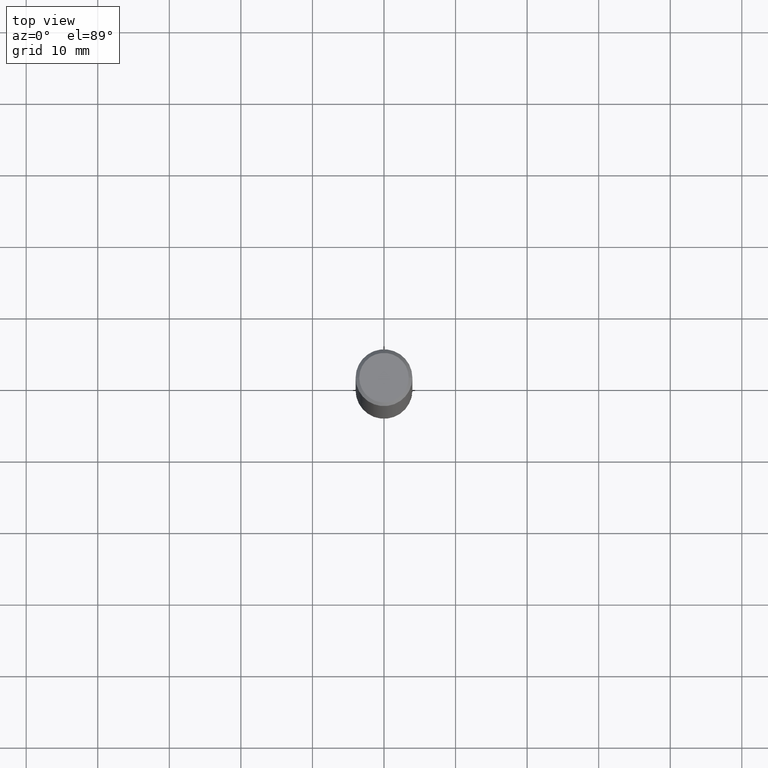
[diagram: clean part render]
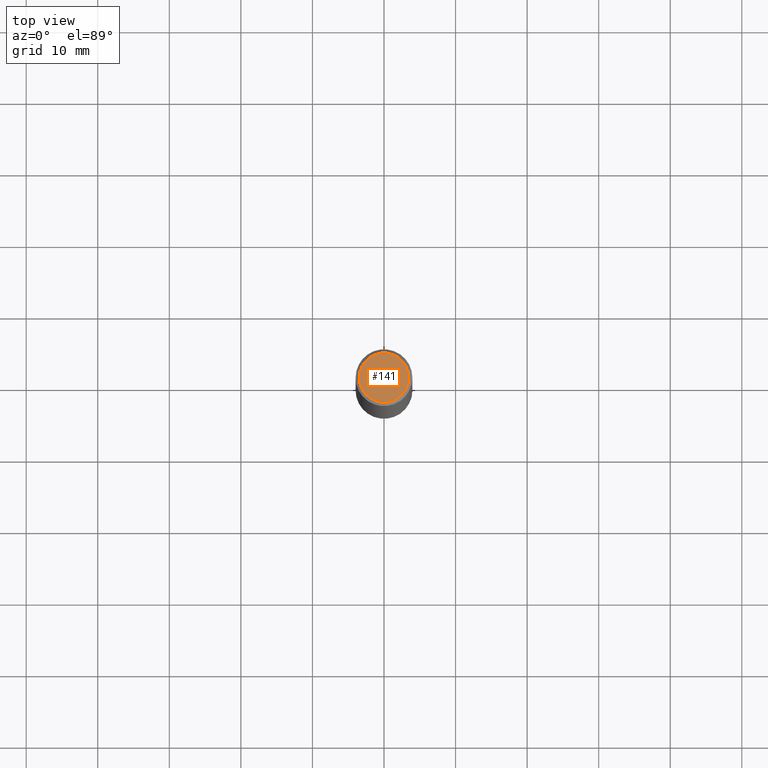
[diagram: same view with one face highlighted and labeled with its STEP entity id]
A machine part, top view. The second image highlights one B-rep face of the part: STEP entity #141.
In plain terms, the highlighted planar face has unit normal (0, -0, -1).
Its self-contained STEP definition (entity closure, byte-faithful):
#6 = CARTESIAN_POINT ( 'NONE',  ( 0.000000000000000000, 0.000000000000000000, 0.000000000000000000 ) ) ;
#8 = DIRECTION ( 'NONE',  ( -2.445468806185136597E-29, 3.491481338843145583E-15, 1.000000000000000000 ) ) ;
#40 = CARTESIAN_POINT ( 'NONE',  ( -0.1362499999999997324, 9.863434782231830429E-16, -6.775751096333125871E-30 ) ) ;
#42 = AXIS2_PLACEMENT_3D ( 'NONE', #333, #253, #305 ) ;
#71 = CARTESIAN_POINT ( 'NONE',  ( 9.514286648347519855E-16, 0.1362499999999997324, -4.757143324173776691E-16 ) ) ;
#84 = EDGE_CURVE ( 'NONE', #123, #87, #118, .T. ) ;
#87 = VERTEX_POINT ( 'NONE', #40 ) ;
#118 = CIRCLE ( 'NONE', #42, 0.1362499999999997324 ) ;
#123 = VERTEX_POINT ( 'NONE', #158 ) ;
#141 = ADVANCED_FACE ( 'NONE', ( #241 ), #364, .F. ) ;
#143 = ORIENTED_EDGE ( 'NONE', *, *, #319, .T. ) ;
#144 = AXIS2_PLACEMENT_3D ( 'NONE', #6, #8, #216 ) ;
#158 = CARTESIAN_POINT ( 'NONE',  ( 0.1362499999999997324, -1.038262645562516152E-15, 6.957025900226682464E-30 ) ) ;
#174 = EDGE_LOOP ( 'NONE', ( #143, #233 ) ) ;
#175 = AXIS2_PLACEMENT_3D ( 'NONE', #71, #370, #304 ) ;
#216 = DIRECTION ( 'NONE',  ( 1.000000000000000000, -6.982962677686266711E-15, 4.876176775795936353E-29 ) ) ;
#233 = ORIENTED_EDGE ( 'NONE', *, *, #84, .T. ) ;
#241 = FACE_OUTER_BOUND ( 'NONE', #174, .T. ) ;
#253 = DIRECTION ( 'NONE',  ( -2.445468806185136597E-29, 3.491481338843145583E-15, 1.000000000000000000 ) ) ;
#304 = DIRECTION ( 'NONE',  ( -1.000000000000000000, 6.982962677686265922E-15, -4.876176775795935793E-29 ) ) ;
#305 = DIRECTION ( 'NONE',  ( 1.000000000000000000, -6.982962677686266711E-15, 4.876176775795936353E-29 ) ) ;
#319 = EDGE_CURVE ( 'NONE', #87, #123, #352, .T. ) ;
#333 = CARTESIAN_POINT ( 'NONE',  ( 0.000000000000000000, 0.000000000000000000, 0.000000000000000000 ) ) ;
#352 = CIRCLE ( 'NONE', #144, 0.1362499999999997324 ) ;
#364 = PLANE ( 'NONE',  #175 ) ;
#370 = DIRECTION ( 'NONE',  ( 2.438088387897960049E-29, -3.491481338843145188E-15, -1.000000000000000000 ) ) ;